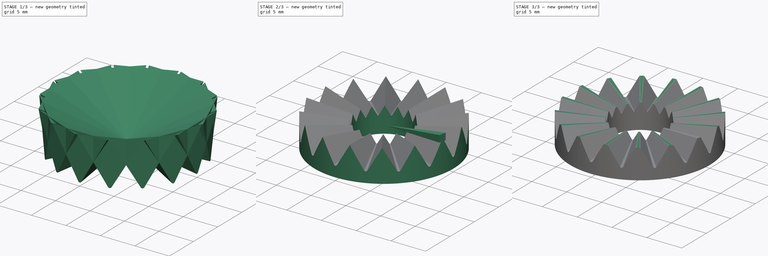
[diagram: build sequence overview — one tinted view per stage of 3, left to right]
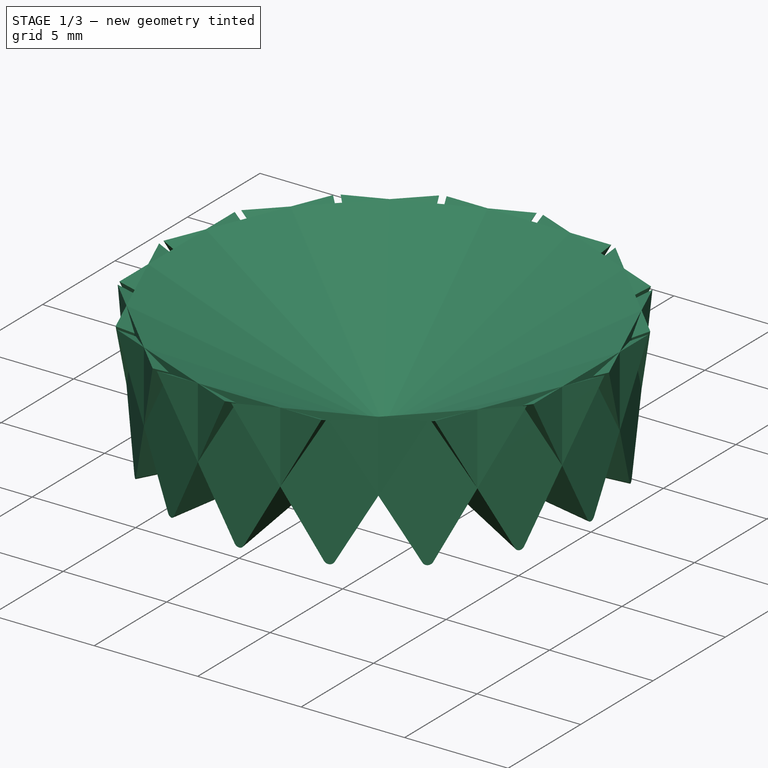
[diagram: stage 1 of 3 — iso view after this stage's code; geometry added in this stage tinted green]
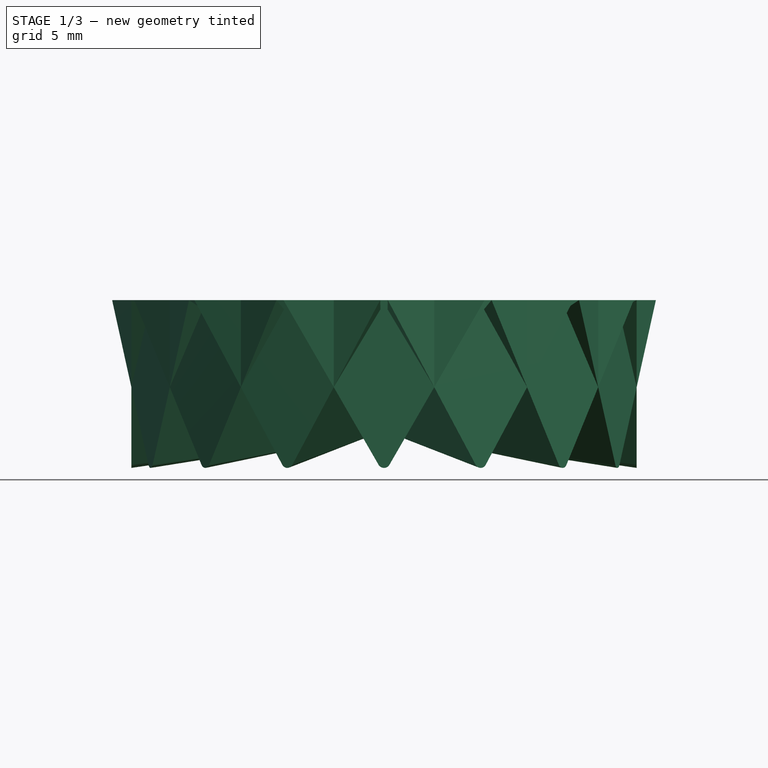
[diagram: stage 1 of 3 — front view after this stage's code; geometry added in this stage tinted green]
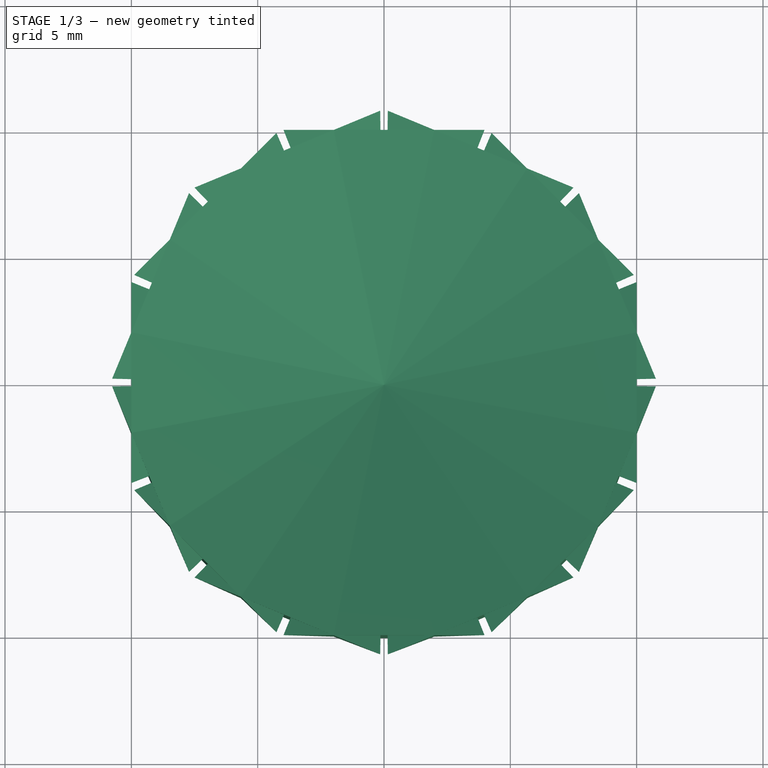
[diagram: stage 1 of 3 — top view after this stage's code; geometry added in this stage tinted green]
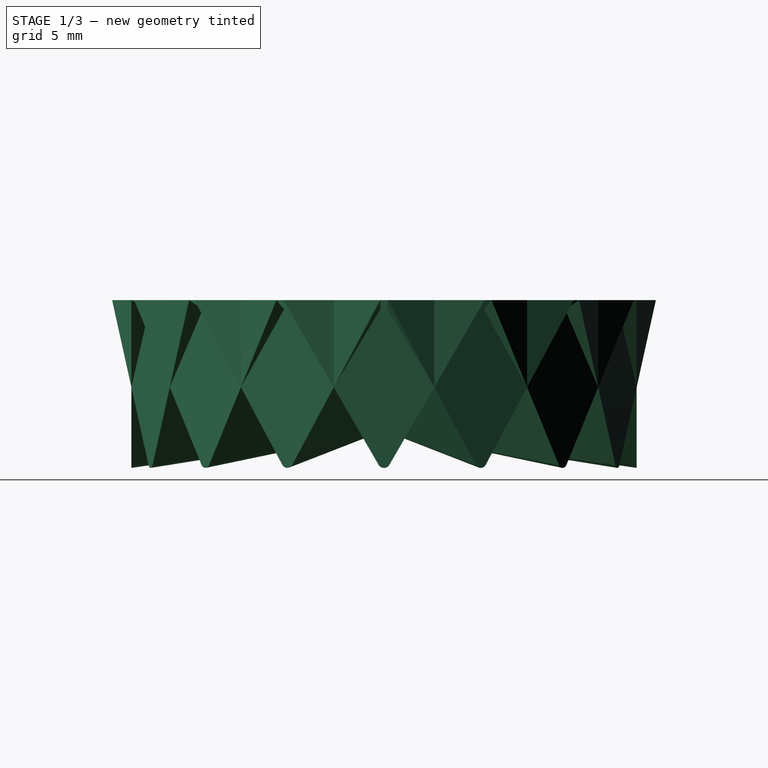
[diagram: stage 1 of 3 — right view after this stage's code; geometry added in this stage tinted green]
FCSTD DOCUMENT  (FreeCAD 0.20R24789 (Git))
Label: Hirth-joint-generator
License: Creative Commons Attribution-ShareAlike
LicenseURL: http://creativecommons.org/licenses/by-sa/4.0/
objects: Sketcher::SketchObject×4, Part::Loft×2, Part::FeaturePython×2, Part::Cut×2, Spreadsheet::Sheet×1, PartDesign::Revolution×1, PartDesign::Point×1, PartDesign::Line×1, PartDesign::Plane×1, PartDesign::Body×1
note: 16 computed .brp shape members not serialized (recipe doc carries the construction recipe); baked Part::Feature solids carry a one-line shape summary decoded from their .brp

FEATURE [PartDesign::Point] DatumPoint  label="ptApex"
  AttacherType = Attacher::AttachEnginePoint
  AttachmentOffset = pos=(0,0,-3) rot=(0,0,1;0rad)
  MapMode = 35
  Placement = pos=(-1e-15,1e-15,3) rot=(0,1,0;3.14159rad)
  Support = -> [Z_Axis]
  expr: .AttachmentOffset.Base.z = -<<cfg>>.axisL
FEATURE [Sketcher::SketchObject] Sketch003  label="sxlTProf"
  AttachmentOffset = pos=(0,0,10) rot=(0,0,1;0rad)
  ExternalGeometry = -> [Sketch001]
  FullyConstrained = true
  MapMode = 5
  Placement = pos=(10,-2.2e-15,2.2e-15) rot=(0.57735,0.57735,0.57735;2.0944rad)
  Support = -> [YZ_Plane]
  expr: .AttachmentOffset.Base.z = <<cfg>>.axisDo * 0.5
  expr: Constraints[12] = Spreadsheet.toothTc
  sketch-geometry (6):
    g0: LineSegment StartX=-1.98912 StartY=4.72263 StartZ=0 EndX=-3.97825 EndY=8.16789 EndZ=0
    g1: LineSegment StartX=1.98912 StartY=4.72263 StartZ=0 EndX=3.97825 EndY=8.16789 EndZ=0
    g2: LineSegment StartX=-3.97825 StartY=8.16789 StartZ=0 EndX=3.97825 EndY=8.16789 EndZ=0
    g3: LineSegment StartX=-3.97825 StartY=8.16789 StartZ=0 EndX=-0.215329 EndY=1.65033 EndZ=0
    g4: LineSegment StartX=3.97825 StartY=8.16789 StartZ=0 EndX=0.215332 EndY=1.65033 EndZ=0
    g5: ArcOfCircle CenterX=0 CenterY=1.77465 CenterZ=0 NormalX=0 NormalY=0 NormalZ=1 AngleXU=0 Radius=0.24864 StartAngle=3.66519 EndAngle=5.75961
  constraints (14):
    c: Tangent(g0,g-3) = 1.5708
    c: Tangent(g1,g-4) = -1.5708
    c: Equal(g-3,g0)
    c: Coincident(g2,g0)
    c: Horizontal(g2)
    c: Coincident(g1,g2)
    c: Coincident(g3,g2)
    c: PointOnObject(g3,g-3)
    c: Coincident(g4,g2)
    c: PointOnObject(g4,g-4)
    c: PointOnObject(g5,g-2)
    c: Coincident(g5,g4)
    c: Radius(g5) = 0.24864
    c: Tangent(g5,g3) = -1.5708
FEATURE [PartDesign::Line] DatumLine  label="lnTopof"
  AttacherType = Attacher::AttachEngineLine
  AttachmentOffset = pos=(0,0,0) rot=(0,-1,0;0.19635rad)
  Length = 20
  MapMode = 31
  Placement = pos=(-1.7e-15,1.6e-15,4.72263) rot=(0.652741,0.535691,0.535691;1.98499rad)
  ResizeMode = 0
  Support = -> [Z_Axis,Revolution]
  expr: .AttachmentOffset.Rotation.Pitch = -<<cfg>>.toothAs * 0.5
FEATURE [PartDesign::Plane] DatumPlane  label="plTopof"
  AttachmentOffset = pos=(0,0,10) rot=(0,0,1;0rad)
  Length = 69.6376
  MapMode = 2
  Placement = pos=(9.80785,-1.9509,4.72263) rot=(0.652741,0.535691,0.535691;1.98499rad)
  ResizeMode = 0
  Support = -> [DatumLine]
  Width = 60.8438
  expr: .AttachmentOffset.Base.z = <<cfg>>.axisDo * 0.5
FEATURE [Sketcher::SketchObject] Sketch  label="sxlTopof"
  FullyConstrained = true
  MapMode = 5
  Placement = pos=(9.80785,-1.9509,4.72263) rot=(0.652741,0.535691,0.535691;1.98499rad)
  Support = -> [DatumPlane]
  expr: Constraints[18] = <<cfg>>.toothTc * 4
  sketch-geometry (7):
    g0: LineSegment StartX=0 StartY=0 StartZ=0 EndX=0 EndY=-0.497281 EndZ=0
    g1: LineSegment StartX=0 StartY=-0.497281 StartZ=0 EndX=-0.497281 EndY=-0.497281 EndZ=0
    g2: LineSegment StartX=0 StartY=-0.497281 StartZ=0 EndX=0.497281 EndY=-0.497281 EndZ=0
    g3: LineSegment StartX=-0.497281 StartY=-0.497281 StartZ=0 EndX=0.497281 EndY=-0.497281 EndZ=0
    g4: LineSegment StartX=-0.497281 StartY=-0.497281 StartZ=0 EndX=-0.497281 EndY=0.497281 EndZ=0
    g5: LineSegment StartX=-0.497281 StartY=0.497281 StartZ=0 EndX=0.497281 EndY=0.497281 EndZ=0
    g6: LineSegment StartX=0.497281 StartY=0.497281 StartZ=0 EndX=0.497281 EndY=-0.497281 EndZ=0
  constraints (19):
    c: Coincident(g0,g-1)
    c: PointOnObject(g0,g-2)
    c: Coincident(g1,g0)
    c: Horizontal(g1)
    c: Coincident(g2,g0)
    c: Horizontal(g2)
    c: Equal(g1,g2)
    c: Equal(g2,g0)
    c: Coincident(g3,g1)
    c: Coincident(g4,g3)
    c: Vertical(g4)
    c: Coincident(g5,g4)
    c: Horizontal(g5)
    c: Coincident(g6,g5)
    c: Coincident(g6,g3)
    c: Vertical(g6)
    c: Coincident(g3,g2)
    c: Equal(g5,g4)
    c: DistanceX(g3,g3) = 0.994562
FEATURE [PartDesign::Body] Body
  Group = -> [Sketch001,Sketch002,Revolution,Sketch003,DatumPoint,DatumLine,DatumPlane,Sketch]
  Origin = -> Origin
  Tip = -> Revolution
FEATURE [Part::Loft] Loft  label="xlTProf"
  Closed = false
  MaxDegree = 5
  Ruled = false
  Sections = -> [Sketch003,DatumPoint]
  Solid = true
FEATURE [Part::FeaturePython] Array  label="apxlTProf"  # Draft array (typed FeaturePython)
  Angle = 360
  ArrayType = 1
  Axis = (0,0,1)
  Base = -> Loft
  Center = (0,0,0)
  Count = 16
  ExpandArray = false
  Fuse = true
  IntervalAxis = (0,0,0)
  IntervalX = (50,0,0)
  IntervalY = (0,50,0)
  IntervalZ = (0,0,50)
  NumberCircles = 3
  NumberPolar = 16
  NumberX = 2
  NumberY = 2
  NumberZ = 1
  PlacementList = 16 placements: [(0,0,0),(0,0,0),(0,0,0),(0,0,0),(0,0,0),(0,0,0),(0,0,0),(0,0,0),(0,0,0),(0,0,0),(0,0,0),(0,0,0),(0,0,0),(0,0,0),(0,0,0),(0,0,0)]
  RadialDistance = 50
  ScaleList = (16) [(1,1,1),(1,1,1),(1,1,1),(1,1,1),(1,1,1),(1,1,1),(1,1,1),(1,1,1),(1,1,1),(1,1,1),(1,1,1),(1,1,1),(1,1,1),(1,1,1),(1,1,1),(1,1,1)]
  Symmetry = 1
  TangentialDistance = 25
  expr: NumberPolar = <<cfg>>.toothC
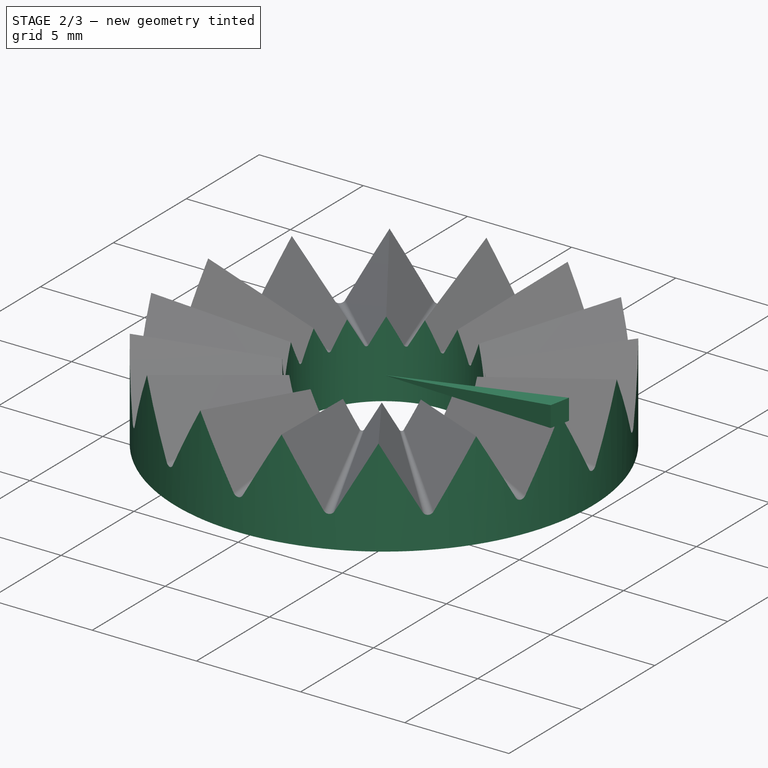
[diagram: stage 2 of 3 — iso view after this stage's code; geometry added in this stage tinted green]
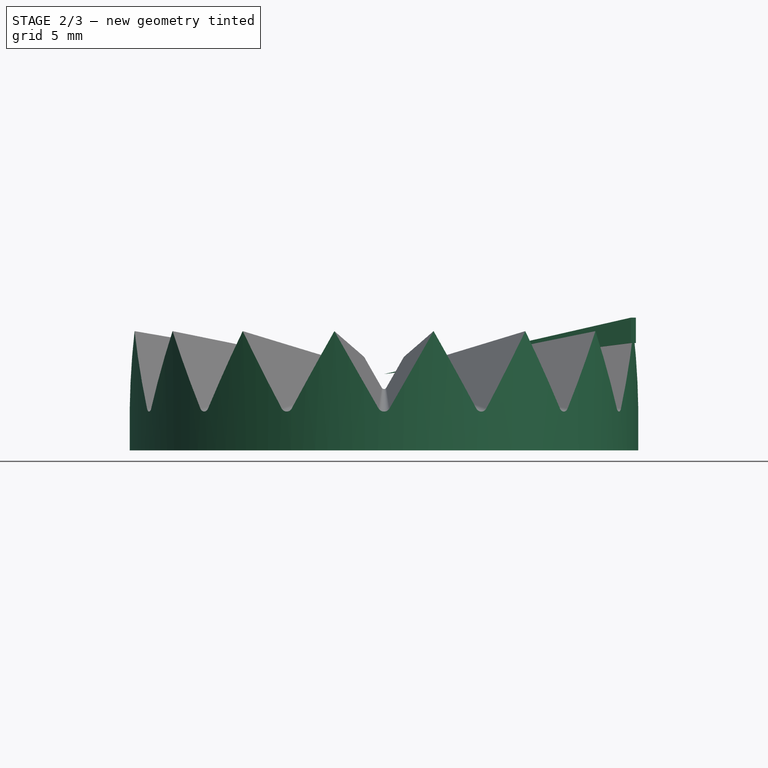
[diagram: stage 2 of 3 — front view after this stage's code; geometry added in this stage tinted green]
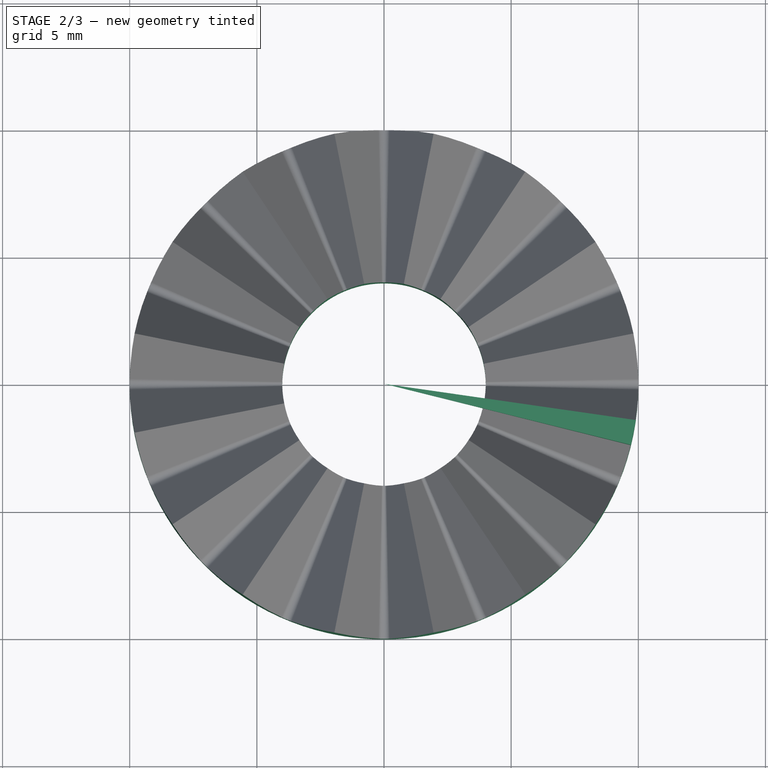
[diagram: stage 2 of 3 — top view after this stage's code; geometry added in this stage tinted green]
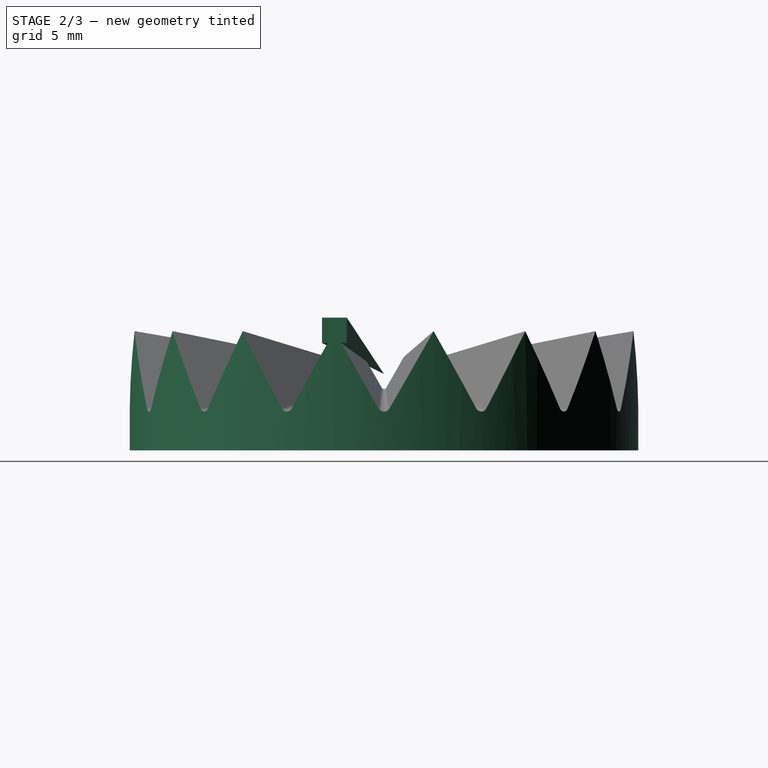
[diagram: stage 2 of 3 — right view after this stage's code; geometry added in this stage tinted green]
FEATURE [Spreadsheet::Sheet] Spreadsheet  label="cfg"
  cells = A1=Hirth Joint Generator; A2=The Hirth joint static connects two shafts on their center line at their end faces.\nThe hole in the middle is for a bold/threaded hole to pull them together.\nThe shafts can be very short with arms on them, to have these arm set in a fixed angle.\n\nThis generator has the apex always in the center of the joint, which makes a symmetric model;\ntwo created with same ETC settings will mate.\n\nPROPERTIES:\n+ self centering\n+ zero backlash\n+ high load\n+ space economy\n+ additive manufacturing is easy\n- subractive manufacturing is costly\n\nMORE INFO:\nhttps://en.wikipedia.org/wiki/Hirth_joint\nSearch: hirth joint geometry\n\nUSAGE HINTS:\n(1) For each app inside project have one\n(2) Name the file to the part name like hjPRT0 or hjPRT1; 0 is original and 1 is rotated\n360/toothC/2 for mating. On import in project this name will be used.\n(3) ETC explicit or ETC implicit by app side &| AUTO vars in DRV.\n(4) Export to STEP\n(5) Import in test print project and repeat from (3) till size requirements are met.\n(6) Import in project, then boolean fuse with a body. Do this as a last step in parametric and or\nspreadsheet driven models prepared to receive a STEP file; serves future maintenance/expansions.\n(7) Replace this comment with project/application info.\n\nNOTE:\n(1) The "After math" variables contain a lot of trig functions, which makes the spreadsheet extra\nslow. These are not refered to inside the objects, so you can delete them if you not plan to use\nthem in the DRV section.; A3=Variable; B3=Value; C3=Comments; A4=DRV; A8=drv_axisL; B8(drv_axisL)=3; A9=ETC; D9=0; A10=axisDo; B10(axisDo)=20; C10=Axis outside diameter.; A11=axisDi; B11(axisDi)=8; C11=Axis inside diameter.; A12=axisL; B12(axisL)==drv_axisL; C12=Axis length; bottom to apex.; A13=toothC; B13(toothC)=16; C13=Number of teeth.; A14=toothAp; B14(toothAp)=60; C14=Tooth profile angle; 60~90 degrees; default=60.; A15=AUTO; A16=toothAs; B16(toothAs)==360 / toothC; C16=Tooth size angle. (top view); A17=toothWp; B17(toothWp)==tan(toothAs * 0.5) * axisDo * 0.5 * 2; C17=Tooth projection width. (side view); A18=toothTc; B18(toothTc)==toothWp * 0.0625; C18=Tooth clearance; width of top, radius of bottom.; A19=After math; A20=toothZr; B20(toothZr)==toothWp * 0.5 / tan(toothAp * 0.5); C20=Tooth height raw; the cutting triangle without bottom radius and topoff.; A21=apexZt; B21(apexZt)==toothZr * 0.5 - toothTc * 2; C21=Apex to tooth topoff.; A22=apexZb; B22(apexZb)==toothZr * 0.5 - toothTc / cos(toothAp * 0.5) / tan(toothAp * 0.5) + toothTc; C22=Apex to tooth radbot.; A23=toothZ; B23(toothZ)==apexZt + apexZb; C23=Tooth height from radbot to topoff.
FEATURE [Sketcher::SketchObject] Sketch001  label="sTrefs"
  AttachmentOffset = pos=(0,0,10) rot=(0,0,1;0rad)
  FullyConstrained = true
  MapMode = 5
  Placement = pos=(10,-2.2e-15,2.2e-15) rot=(0.57735,0.57735,0.57735;2.0944rad)
  Support = -> [YZ_Plane]
  expr: Constraints[3] = <<cfg>>.toothWp
  expr: Constraints[13] = <<cfg>>.toothAp
  expr: .AttachmentOffset.Base.z = <<cfg>>.axisDo * 0.5
  expr: Constraints[14] = <<cfg>>.axisL
  sketch-geometry (6):
    g0: LineSegment StartX=-1.98912 StartY=4.72263 StartZ=0 EndX=1.98912 EndY=4.72263 EndZ=0
    g1: GeomPoint X=0 Y=4.72263 Z=0
    g2: LineSegment StartX=0 StartY=4.72263 StartZ=0 EndX=0 EndY=3 EndZ=0
    g3: LineSegment StartX=0 StartY=3 StartZ=0 EndX=0 EndY=1.27737 EndZ=0
    g4: LineSegment StartX=-1.98912 StartY=4.72263 StartZ=0 EndX=0 EndY=1.27737 EndZ=0
    g5: LineSegment StartX=0 StartY=1.27737 StartZ=0 EndX=1.98912 EndY=4.72263 EndZ=0
  constraints (15):
    c: Horizontal(g0)
    c: PointOnObject(g1,g-2)
    c: Symmetric(g0,g0,g1)
    c: DistanceX(g0,g0) = 3.97825
    c: Coincident(g2,g1)
    c: PointOnObject(g2,g-2)
    c: Coincident(g3,g2)
    c: PointOnObject(g3,g-2)
    c: Equal(g3,g2)
    c: Coincident(g4,g0)
    c: Coincident(g4,g3)
    c: Coincident(g5,g3)
    c: Coincident(g5,g0)
    c: Angle(g5,g4) = 1.0472
    c: DistanceY(g-1,g2) = 3
FEATURE [Sketcher::SketchObject] Sketch002  label="sxrAxis"
  ExternalGeometry = -> [Sketch001]
  FullyConstrained = true
  MapMode = 5
  Placement = pos=(0,0,0) rot=(1,0,0;1.5708rad)
  Support = -> [XZ_Plane]
  expr: Constraints[12] = <<cfg>>.axisL
  expr: Constraints[13] = <<cfg>>.axisDi * 0.5
  sketch-geometry (5):
    g0: LineSegment StartX=0 StartY=3 StartZ=0 EndX=10 EndY=4.72263 EndZ=0
    g1: LineSegment StartX=4 StartY=3.68905 StartZ=0 EndX=4 EndY=0 EndZ=0
    g2: LineSegment StartX=4 StartY=0 StartZ=0 EndX=10 EndY=0 EndZ=0
    g3: LineSegment StartX=10 StartY=0 StartZ=0 EndX=10 EndY=4.72263 EndZ=0
    g4: LineSegment StartX=10 StartY=4.72263 StartZ=0 EndX=4 EndY=3.68905 EndZ=0
  constraints (14):
    c: PointOnObject(g0,g-2)
    c: Coincident(g0,g-3)
    c: PointOnObject(g1,g0)
    c: Vertical(g1)
    c: Coincident(g2,g1)
    c: PointOnObject(g2,g-1)
    c: Horizontal(g2)
    c: Coincident(g3,g2)
    c: Coincident(g3,g0)
    c: Vertical(g3)
    c: Coincident(g4,g3)
    c: Coincident(g4,g1)
    c: DistanceY(g-1,g0) = 3
    c: DistanceX(g-1,g1) = 4
FEATURE [PartDesign::Revolution] Revolution  label="xrAxis"
  Angle = 360
  Axis = (0,-2e-16,1)
  Base = (0,0,0)
  Placement = pos=(0,0,0) rot=(1,0,0;1.5708rad)
  Profile = -> Sketch002
  ReferenceAxis = -> Sketch002 [V_Axis]
  Reversed = true
FEATURE [Part::Loft] Loft001  label="xlTopof"
  Closed = false
  MaxDegree = 5
  Ruled = false
  Sections = -> [Sketch,DatumPoint]
  Solid = true
FEATURE [Part::Cut] Cut  label="cTprof"
  Base = -> Body
  Tool = -> Array
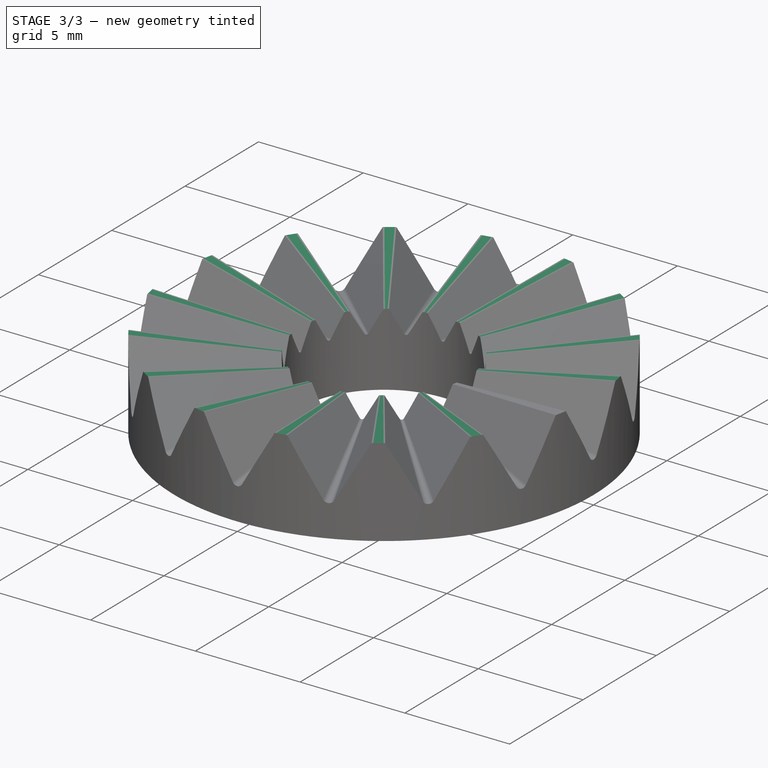
[diagram: stage 3 of 3 — iso view after this stage's code; geometry added in this stage tinted green]
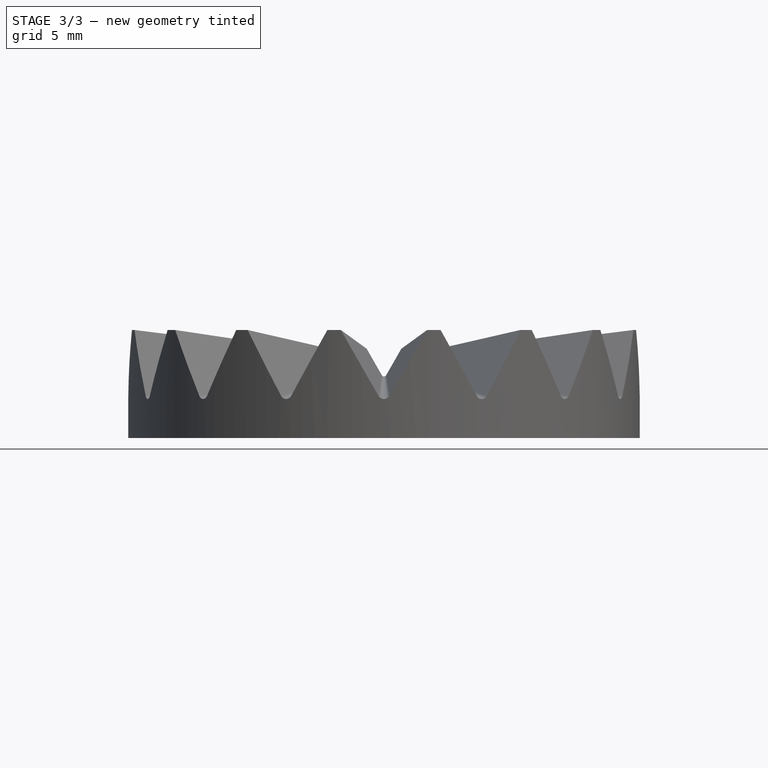
[diagram: stage 3 of 3 — front view after this stage's code; geometry added in this stage tinted green]
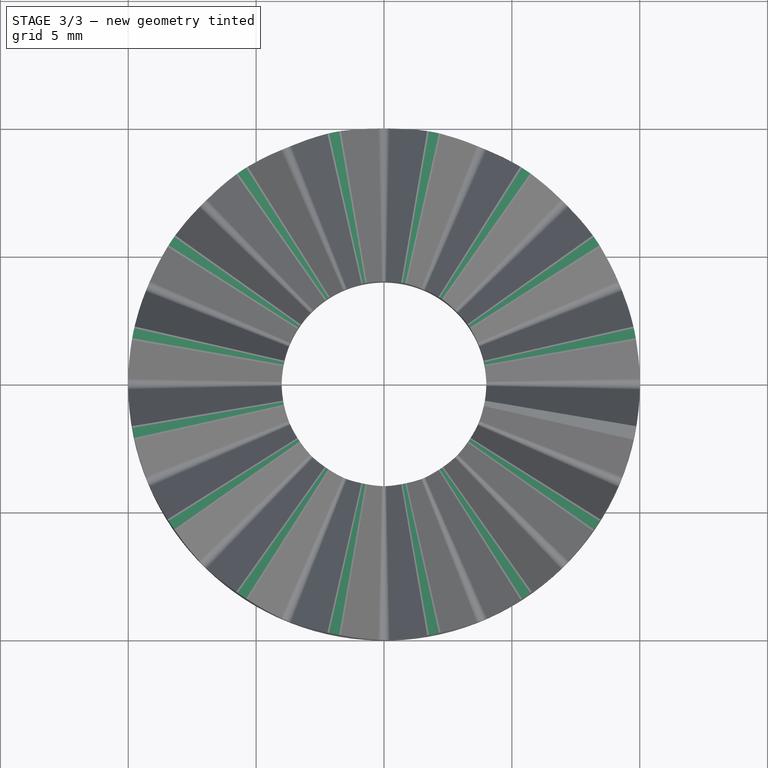
[diagram: stage 3 of 3 — top view after this stage's code; geometry added in this stage tinted green]
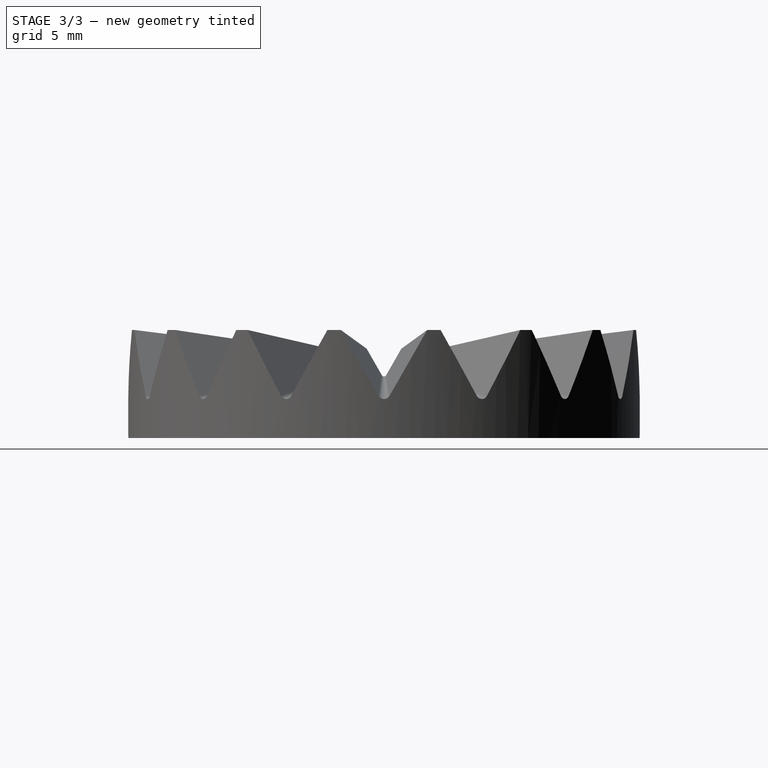
[diagram: stage 3 of 3 — right view after this stage's code; geometry added in this stage tinted green]
FEATURE [Part::FeaturePython] Array001  label="apxlTopof"  # Draft array (typed FeaturePython)
  Angle = 360
  ArrayType = 1
  Axis = (0,0,1)
  Base = -> Loft001
  Center = (0,0,0)
  Count = 16
  ExpandArray = false
  Fuse = true
  IntervalAxis = (0,0,0)
  IntervalX = (50,0,0)
  IntervalY = (0,50,0)
  IntervalZ = (0,0,50)
  NumberCircles = 3
  NumberPolar = 16
  NumberX = 2
  NumberY = 2
  NumberZ = 1
  PlacementList = 16 placements: [(0,0,0),(0,0,0),(0,0,0),(0,0,0),(0,0,0),(0,0,0),(0,0,0),(0,0,0),(0,0,0),(0,0,0),(0,0,0),(0,0,0),(0,0,0),(0,0,0),(0,0,0),(0,0,0)]
  RadialDistance = 50
  ScaleList = (16) [(1,1,1),(1,1,1),(1,1,1),(1,1,1),(1,1,1),(1,1,1),(1,1,1),(1,1,1),(1,1,1),(1,1,1),(1,1,1),(1,1,1),(1,1,1),(1,1,1),(1,1,1),(1,1,1)]
  Symmetry = 1
  TangentialDistance = 25
  expr: NumberPolar = <<cfg>>.toothC
FEATURE [Part::Cut] Cut001  label="HirthJoint"
  Base = -> Cut
  Tool = -> Array001
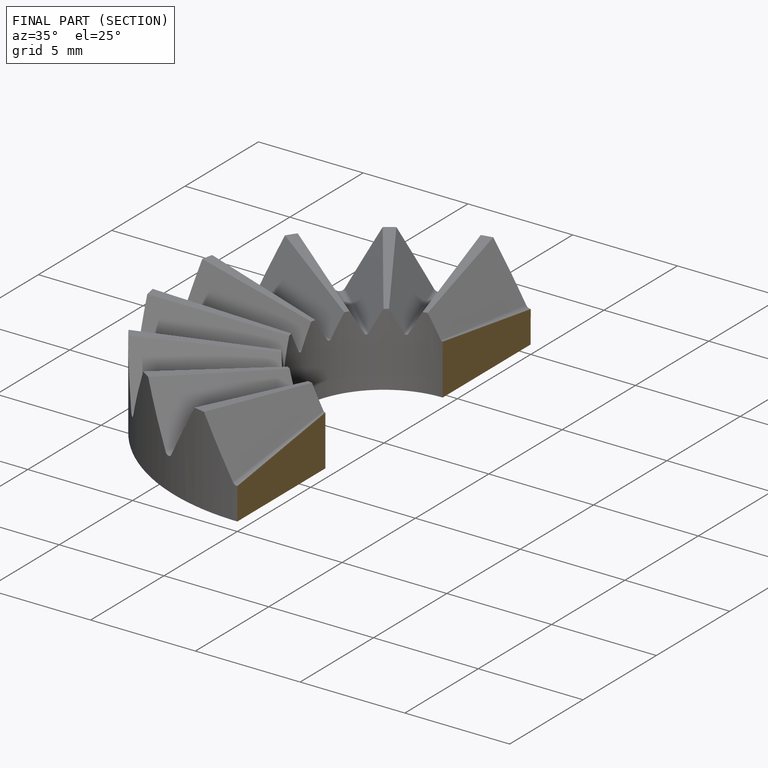
[diagram: finished part — half-section view (interior)]
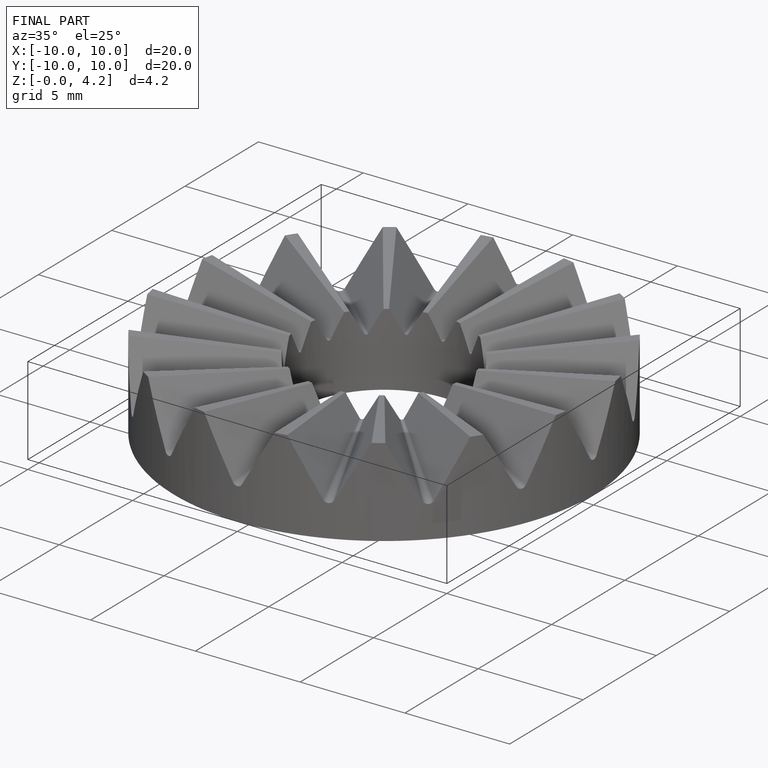
[diagram: finished part — iso view with bounding-box wireframe]
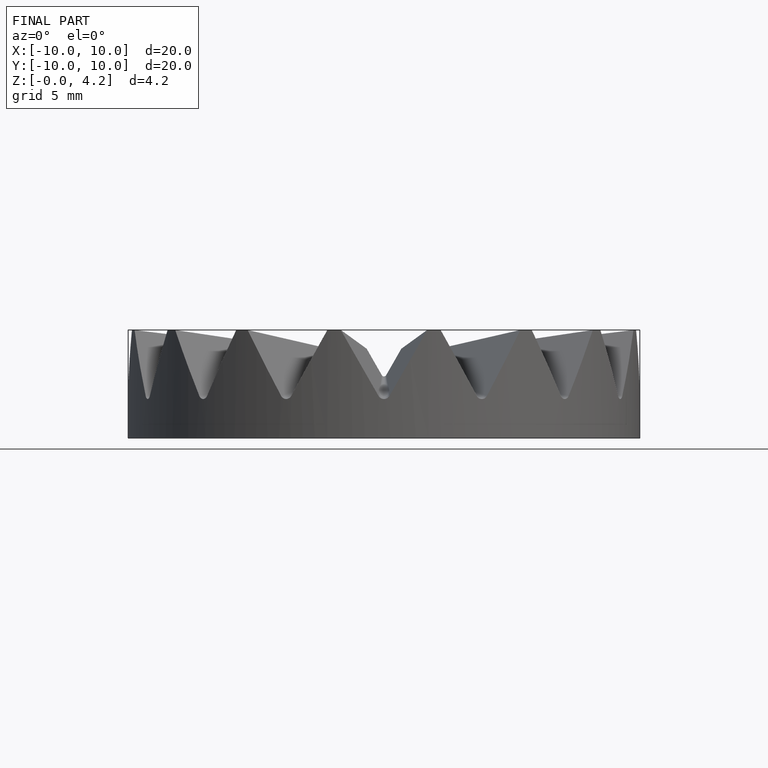
[diagram: finished part — front view with bounding-box wireframe]
